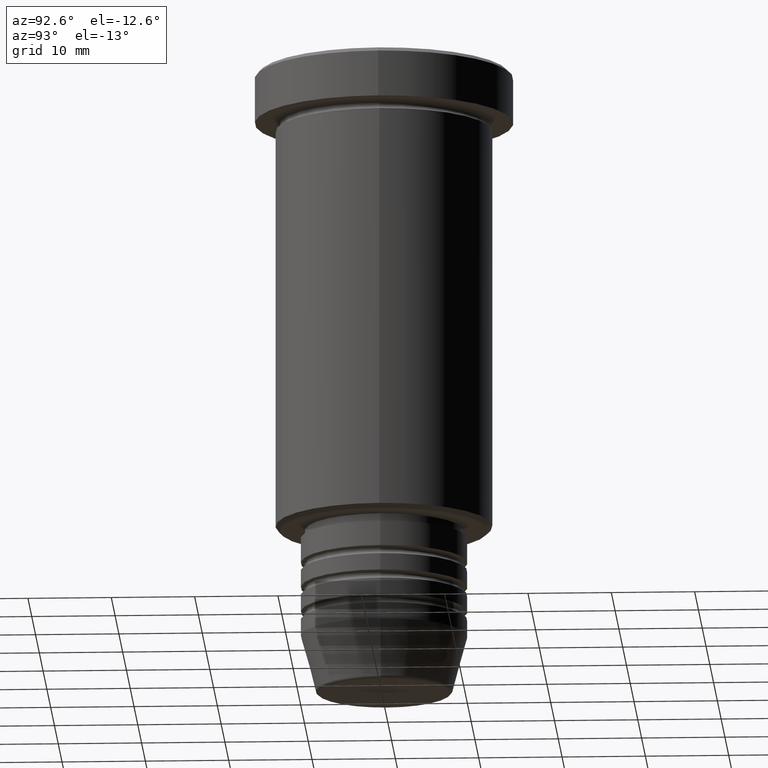
[diagram: clean part render]
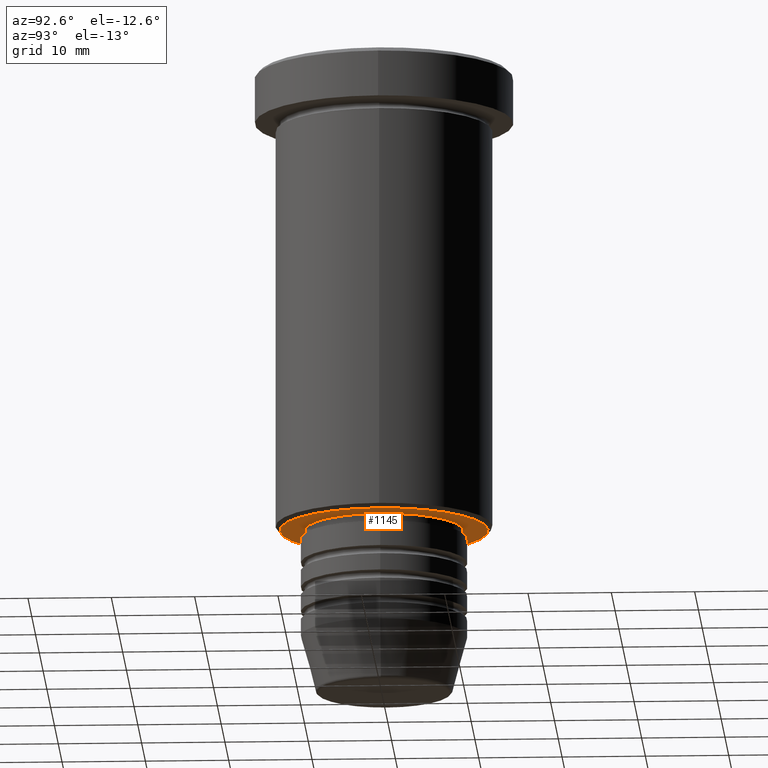
[diagram: same view with one face highlighted and labeled with its STEP entity id]
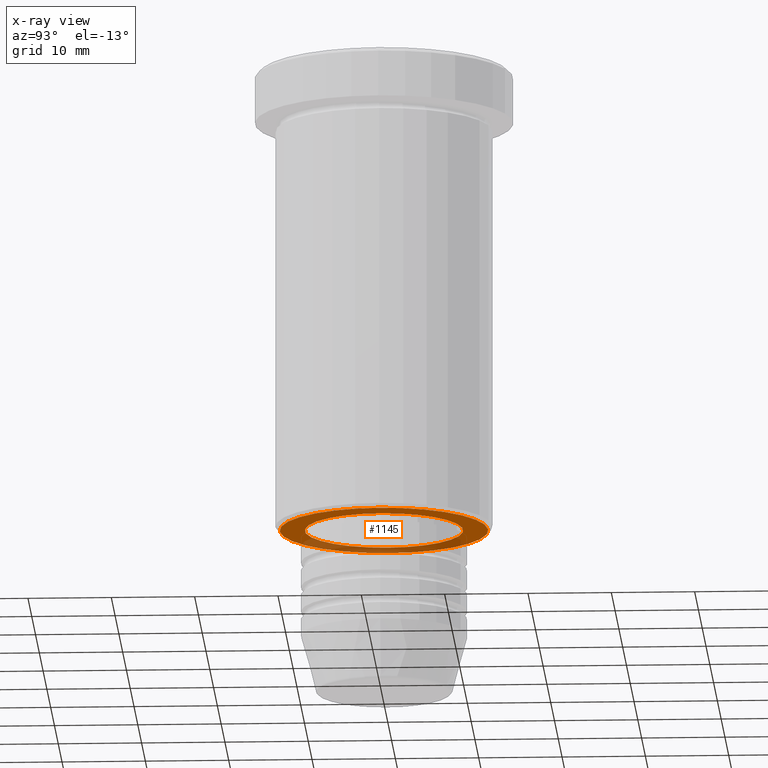
[diagram: x-ray of the same camera — body ghosted, the highlighted face saturated]
A machine part, auxiliary view. The second image highlights one B-rep face of the part: STEP entity #1145.
The next image is the same camera in x-ray: the body ghosted, the highlighted face saturated — about 32% of this face is hidden behind the body in this view.
In plain terms, the highlighted planar face has unit normal (0, 0, -1).
Its self-contained STEP definition (entity closure, byte-faithful):
#1 = CARTESIAN_POINT ( 'NONE',  ( -9.500000000000000000, 1.163414459189985485E-15, -56.00000000000000711 ) ) ;
#38 = AXIS2_PLACEMENT_3D ( 'NONE', #335, #260, #80 ) ;
#44 = CARTESIAN_POINT ( 'NONE',  ( 0.000000000000000000, 0.000000000000000000, -56.00000000000000711 ) ) ;
#54 = DIRECTION ( 'NONE',  ( 1.000000000000000000, 0.000000000000000000, 0.000000000000000000 ) ) ;
#80 = DIRECTION ( 'NONE',  ( -1.000000000000000000, 0.000000000000000000, 0.000000000000000000 ) ) ;
#189 = CIRCLE ( 'NONE', #856, 9.500000000000000000 ) ;
#191 = DIRECTION ( 'NONE',  ( 0.000000000000000000, 0.000000000000000000, -1.000000000000000000 ) ) ;
#244 = CARTESIAN_POINT ( 'NONE',  ( 0.000000000000000000, 0.000000000000000000, -56.00000000000000711 ) ) ;
#250 = AXIS2_PLACEMENT_3D ( 'NONE', #1019, #191, #652 ) ;
#260 = DIRECTION ( 'NONE',  ( 0.000000000000000000, 0.000000000000000000, -1.000000000000000000 ) ) ;
#275 = EDGE_LOOP ( 'NONE', ( #594, #965 ) ) ;
#304 = VERTEX_POINT ( 'NONE', #671 ) ;
#314 = DIRECTION ( 'NONE',  ( 1.000000000000000000, 0.000000000000000000, 0.000000000000000000 ) ) ;
#335 = CARTESIAN_POINT ( 'NONE',  ( 0.000000000000000000, 0.000000000000000000, -56.00000000000000711 ) ) ;
#366 = EDGE_LOOP ( 'NONE', ( #1022, #883 ) ) ;
#380 = AXIS2_PLACEMENT_3D ( 'NONE', #44, #496, #1031 ) ;
#390 = EDGE_CURVE ( 'NONE', #460, #633, #1006, .T. ) ;
#394 = VERTEX_POINT ( 'NONE', #959 ) ;
#412 = DIRECTION ( 'NONE',  ( -0.000000000000000000, -0.000000000000000000, 1.000000000000000000 ) ) ;
#460 = VERTEX_POINT ( 'NONE', #766 ) ;
#468 = EDGE_CURVE ( 'NONE', #633, #460, #189, .T. ) ;
#474 = FACE_OUTER_BOUND ( 'NONE', #366, .T. ) ;
#496 = DIRECTION ( 'NONE',  ( 0.000000000000000000, 0.000000000000000000, -1.000000000000000000 ) ) ;
#549 = PLANE ( 'NONE',  #250 ) ;
#594 = ORIENTED_EDGE ( 'NONE', *, *, #390, .T. ) ;
#633 = VERTEX_POINT ( 'NONE', #1 ) ;
#652 = DIRECTION ( 'NONE',  ( -1.000000000000000000, 0.000000000000000000, -0.000000000000000000 ) ) ;
#671 = CARTESIAN_POINT ( 'NONE',  ( -12.49999999999999112, 1.561424668912874519E-15, -56.00000000000000711 ) ) ;
#681 = CARTESIAN_POINT ( 'NONE',  ( 0.000000000000000000, 0.000000000000000000, -56.00000000000000711 ) ) ;
#760 = AXIS2_PLACEMENT_3D ( 'NONE', #681, #952, #54 ) ;
#766 = CARTESIAN_POINT ( 'NONE',  ( 9.500000000000000000, 0.000000000000000000, -56.00000000000000711 ) ) ;
#852 = EDGE_CURVE ( 'NONE', #304, #394, #903, .T. ) ;
#856 = AXIS2_PLACEMENT_3D ( 'NONE', #244, #412, #314 ) ;
#876 = CIRCLE ( 'NONE', #38, 12.49999999999999112 ) ;
#883 = ORIENTED_EDGE ( 'NONE', *, *, #852, .T. ) ;
#903 = CIRCLE ( 'NONE', #380, 12.49999999999999112 ) ;
#927 = FACE_BOUND ( 'NONE', #275, .T. ) ;
#952 = DIRECTION ( 'NONE',  ( -0.000000000000000000, -0.000000000000000000, 1.000000000000000000 ) ) ;
#959 = CARTESIAN_POINT ( 'NONE',  ( 12.49999999999999112, 0.000000000000000000, -56.00000000000000711 ) ) ;
#965 = ORIENTED_EDGE ( 'NONE', *, *, #468, .T. ) ;
#1006 = CIRCLE ( 'NONE', #760, 9.500000000000000000 ) ;
#1019 = CARTESIAN_POINT ( 'NONE',  ( 0.000000000000000000, 13.00000000000000000, -56.00000000000000711 ) ) ;
#1022 = ORIENTED_EDGE ( 'NONE', *, *, #1113, .T. ) ;
#1031 = DIRECTION ( 'NONE',  ( -1.000000000000000000, 0.000000000000000000, 0.000000000000000000 ) ) ;
#1113 = EDGE_CURVE ( 'NONE', #394, #304, #876, .T. ) ;
#1145 = ADVANCED_FACE ( 'NONE', ( #474, #927 ), #549, .T. ) ;